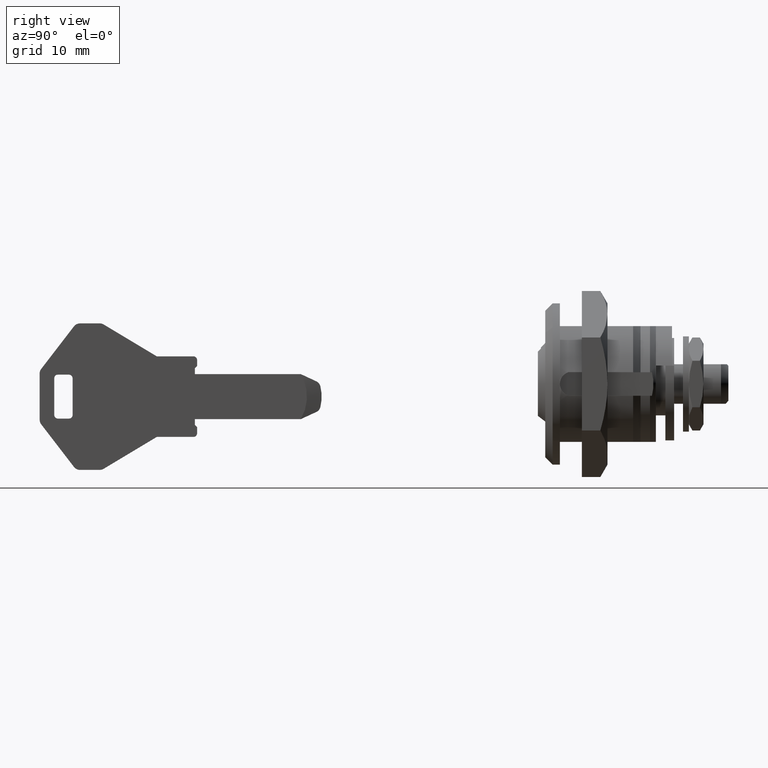
[diagram: clean part render]
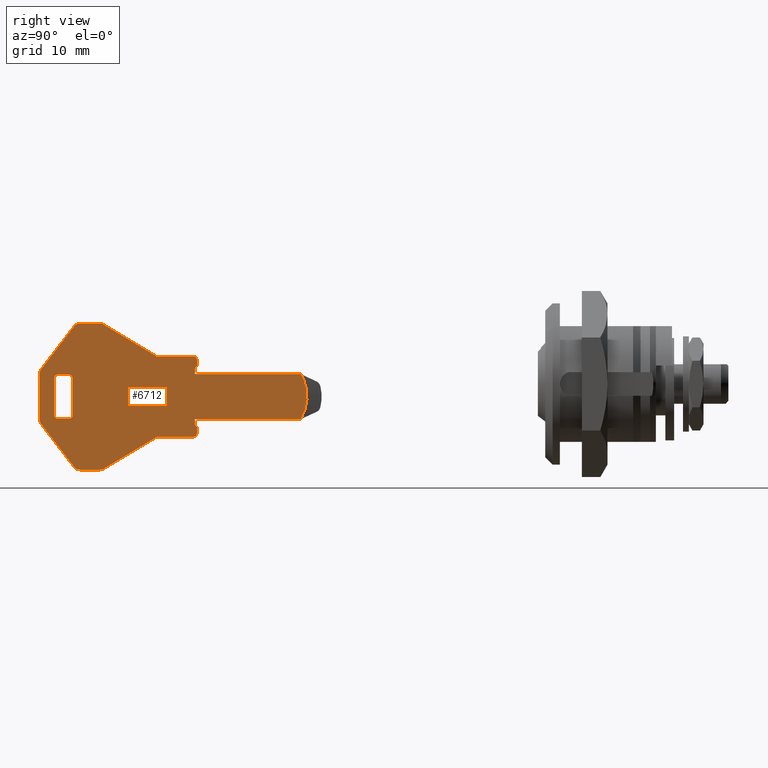
[diagram: same view with one face highlighted and labeled with its STEP entity id]
A machine part, right view. The second image highlights one B-rep face of the part: STEP entity #6712.
In plain terms, the highlighted face is a freeform B-spline surface patch.
Its self-contained STEP definition (entity closure, byte-faithful):
#6002=CARTESIAN_POINT('',(-33.377038543214802,-0.899998415014696,1.350000000000000));
#6003=VERTEX_POINT('',#6002);
#6044=CARTESIAN_POINT('',(-33.377038543215527,-0.899998415014839,-4.800000000000080));
#6045=VERTEX_POINT('',#6044);
#6087=CARTESIAN_POINT('',(-33.377038543215527,-0.899998415014839,-4.800000000000080));
#6088=CARTESIAN_POINT('',(-33.152902377031609,-0.899998415014831,-4.424617320372263));
#6089=CARTESIAN_POINT('',(-32.801364602822687,-0.899998415014812,-3.655329617043881));
#6090=CARTESIAN_POINT('',(-32.544793984903087,-0.899998415014786,-2.500422198590437));
#6091=CARTESIAN_POINT('',(-32.501543349401480,-0.899998415014757,-1.218603962806129));
#6092=CARTESIAN_POINT('',(-32.744979303818013,-0.899998415014724,0.082262318686601));
#6093=CARTESIAN_POINT('',(-33.152930568746307,-0.899998415014707,0.974613814575664));
#6094=CARTESIAN_POINT('',(-33.377038543214802,-0.899998415014696,1.350000000000000));
#6095=B_SPLINE_CURVE_WITH_KNOTS('',3,(#6087,#6088,#6089,#6090,#6091,#6092,#6093,#6094),.UNSPECIFIED.,.F.,.U.,(4,1,1,1,1,4),(0.000000040812957,1.311612534022646,2.522359597749969,3.531255800534495,5.145580465891455,6.457193204075082),.UNSPECIFIED.);
#6096=EDGE_CURVE('',#6045,#6003,#6095,.T.);
#6427=CARTESIAN_POINT('',(-70.852376933787852,-0.900000000000000,9.273999585744747));
#6428=CARTESIAN_POINT('',(-30.705931655007170,-0.900000000000000,9.273999585744747));
#6429=CARTESIAN_POINT('',(-70.852376933787852,-0.900000000000000,-12.724000479814579));
#6430=CARTESIAN_POINT('',(-30.705931655007170,-0.900000000000000,-12.724000479814579));
#6431=B_SPLINE_SURFACE_WITH_KNOTS('',1,1,((#6427,#6429),(#6428,#6430)),.UNSPECIFIED.,.F.,.F.,.U.,(2,2),(2,2),(0.0,40.146445278780682),(0.0,21.998000065559321),.UNSPECIFIED.);
#6432=ORIENTED_EDGE('',*,*,#6096,.T.);
#6433=CARTESIAN_POINT('',(-47.829200000000000,-0.900000000000012,1.350000000000000));
#6434=VERTEX_POINT('',#6433);
#6435=CARTESIAN_POINT('',(-33.377038543214802,-0.899998415014696,1.350000000000000));
#6436=CARTESIAN_POINT('',(-47.829200000000000,-0.900000000000012,1.350000000000000));
#6437=QUASI_UNIFORM_CURVE('',1,(#6435,#6436),.UNSPECIFIED.,.F.,.U.);
#6438=EDGE_CURVE('',#6003,#6434,#6437,.T.);
#6439=ORIENTED_EDGE('',*,*,#6438,.T.);
#6440=CARTESIAN_POINT('',(-47.829200000000000,-0.900000000000012,2.150000000000000));
#6441=VERTEX_POINT('',#6440);
#6442=CARTESIAN_POINT('',(-47.829200000000000,-0.900000000000012,1.350000000000000));
#6443=CARTESIAN_POINT('',(-47.829200000000000,-0.900000000000012,2.150000000000000));
#6444=QUASI_UNIFORM_CURVE('',1,(#6442,#6443),.UNSPECIFIED.,.F.,.U.);
#6445=EDGE_CURVE('',#6434,#6441,#6444,.T.);
#6446=ORIENTED_EDGE('',*,*,#6445,.T.);
#6447=CARTESIAN_POINT('',(-47.529200000000003,-0.900000000000012,2.450000000000000));
#6448=VERTEX_POINT('',#6447);
#6449=CARTESIAN_POINT('',(-47.829200000000000,-0.900000000000012,2.150000000000000));
#6450=CARTESIAN_POINT('',(-47.529200000000003,-0.900000000000012,2.450000000000000));
#6451=QUASI_UNIFORM_CURVE('',1,(#6449,#6450),.UNSPECIFIED.,.F.,.U.);
#6452=EDGE_CURVE('',#6441,#6448,#6451,.T.);
#6453=ORIENTED_EDGE('',*,*,#6452,.T.);
#6454=CARTESIAN_POINT('',(-47.529200000000003,-0.900000000000012,3.275000000000000));
#6455=VERTEX_POINT('',#6454);
#6456=CARTESIAN_POINT('',(-47.529200000000003,-0.900000000000012,2.450000000000000));
#6457=CARTESIAN_POINT('',(-47.529200000000003,-0.900000000000012,3.275000000000000));
#6458=QUASI_UNIFORM_CURVE('',1,(#6456,#6457),.UNSPECIFIED.,.F.,.U.);
#6459=EDGE_CURVE('',#6448,#6455,#6458,.T.);
#6460=ORIENTED_EDGE('',*,*,#6459,.T.);
#6461=CARTESIAN_POINT('',(-48.029200000000003,-0.900000000000012,3.775000000000000));
#6462=VERTEX_POINT('',#6461);
#6463=CARTESIAN_POINT('',(-47.529200000000003,-0.900000000000012,3.275000000000000));
#6464=CARTESIAN_POINT('',(-47.529043584060737,-0.900000000000012,3.356849959860222));
#6465=CARTESIAN_POINT('',(-47.560001471217163,-0.900000000000012,3.479398876038724));
#6466=CARTESIAN_POINT('',(-47.669210471618470,-0.900000000000012,3.634430003952036));
#6467=CARTESIAN_POINT('',(-47.816564684132643,-0.900000000000012,3.743709806676057));
#6468=CARTESIAN_POINT('',(-47.955547327944458,-0.900000000000014,3.775112477421635));
#6469=CARTESIAN_POINT('',(-48.029200000000003,-0.900000000000012,3.775000000000000));
#6470=B_SPLINE_CURVE_WITH_KNOTS('',3,(#6463,#6464,#6465,#6466,#6467,#6468,#6469),.UNSPECIFIED.,.F.,.U.,(4,1,1,1,4),(0.000000378754695,0.245466615866304,0.368210764458864,0.564556063266685,0.785476941727197),.UNSPECIFIED.);
#6471=EDGE_CURVE('',#6455,#6462,#6470,.T.);
#6472=ORIENTED_EDGE('',*,*,#6471,.T.);
#6473=CARTESIAN_POINT('',(-53.029200000000003,-0.900000000000012,3.775000000000000));
#6474=VERTEX_POINT('',#6473);
#6475=CARTESIAN_POINT('',(-48.029200000000003,-0.900000000000012,3.775000000000000));
#6476=CARTESIAN_POINT('',(-53.029200000000003,-0.900000000000012,3.775000000000000));
#6477=QUASI_UNIFORM_CURVE('',1,(#6475,#6476),.UNSPECIFIED.,.F.,.U.);
#6478=EDGE_CURVE('',#6462,#6474,#6477,.T.);
#6479=ORIENTED_EDGE('',*,*,#6478,.T.);
#6480=CARTESIAN_POINT('',(-60.265547876998099,-0.900000000000012,8.116310526689340));
#6481=VERTEX_POINT('',#6480);
#6482=CARTESIAN_POINT('',(-53.029200000000003,-0.900000000000012,3.775000000000000));
#6483=CARTESIAN_POINT('',(-60.265547876998099,-0.900000000000012,8.116310526689340));
#6484=QUASI_UNIFORM_CURVE('',1,(#6482,#6483),.UNSPECIFIED.,.F.,.U.);
#6485=EDGE_CURVE('',#6474,#6481,#6484,.T.);
#6486=ORIENTED_EDGE('',*,*,#6485,.T.);
#6487=CARTESIAN_POINT('',(-60.806100000000001,-0.900000000000012,8.274999999999999));
#6488=VERTEX_POINT('',#6487);
#6489=CARTESIAN_POINT('',(-60.265547876998099,-0.900000000000012,8.116310526689340));
#6490=CARTESIAN_POINT('',(-60.425569254137500,-0.900000000000012,8.219621950942406));
#6491=CARTESIAN_POINT('',(-60.615662822163422,-0.900000000000012,8.275291947905297));
#6492=CARTESIAN_POINT('',(-60.806100000000001,-0.900000000000012,8.274999999999999));
#6493=B_SPLINE_CURVE_WITH_KNOTS('',3,(#6489,#6490,#6491,#6492),.UNSPECIFIED.,.F.,.U.,(4,4),(0.000000034768193,0.571123536007726),.UNSPECIFIED.);
#6494=EDGE_CURVE('',#6481,#6488,#6493,.T.);
#6495=ORIENTED_EDGE('',*,*,#6494,.T.);
#6496=CARTESIAN_POINT('',(-63.536800000000007,-0.900000000000012,8.274999999999999));
#6497=VERTEX_POINT('',#6496);
#6498=CARTESIAN_POINT('',(-60.806100000000001,-0.900000000000012,8.274999999999999));
#6499=CARTESIAN_POINT('',(-63.536800000000007,-0.900000000000012,8.274999999999999));
#6500=QUASI_UNIFORM_CURVE('',1,(#6498,#6499),.UNSPECIFIED.,.F.,.U.);
#6501=EDGE_CURVE('',#6488,#6497,#6500,.T.);
#6502=ORIENTED_EDGE('',*,*,#6501,.T.);
#6503=CARTESIAN_POINT('',(-64.329400047204601,-0.900000000000012,7.884999938624711));
#6504=VERTEX_POINT('',#6503);
#6505=CARTESIAN_POINT('',(-63.536800000000007,-0.900000000000012,8.274999999999999));
#6506=CARTESIAN_POINT('',(-63.670252051023077,-0.900000000000012,8.275218665045104));
#6507=CARTESIAN_POINT('',(-63.975206675919772,-0.900000000000012,8.213265140419839));
#6508=CARTESIAN_POINT('',(-64.225077251292134,-0.900000000000013,8.021310965326384));
#6509=CARTESIAN_POINT('',(-64.329400047204601,-0.900000000000012,7.884999938624711));
#6510=B_SPLINE_CURVE_WITH_KNOTS('',3,(#6505,#6506,#6507,#6508,#6509),.UNSPECIFIED.,.F.,.U.,(4,1,4),(0.000000120151753,0.400341080771767,0.915027601937548),.UNSPECIFIED.);
#6511=EDGE_CURVE('',#6497,#6504,#6510,.T.);
#6512=ORIENTED_EDGE('',*,*,#6511,.T.);
#6513=CARTESIAN_POINT('',(-68.839844749133903,-0.900000000000012,2.020538291405075));
#6514=VERTEX_POINT('',#6513);
#6515=CARTESIAN_POINT('',(-64.329400047204601,-0.900000000000012,7.884999938624711));
#6516=CARTESIAN_POINT('',(-68.839844749133903,-0.900000000000012,2.020538291405075));
#6517=QUASI_UNIFORM_CURVE('',1,(#6515,#6516),.UNSPECIFIED.,.F.,.U.);
#6518=EDGE_CURVE('',#6504,#6514,#6517,.T.);
#6519=ORIENTED_EDGE('',*,*,#6518,.T.);
#6520=CARTESIAN_POINT('',(-69.029200000000003,-0.900000000000012,1.435000000000016));
#6521=VERTEX_POINT('',#6520);
#6522=CARTESIAN_POINT('',(-68.839844749133903,-0.900000000000012,2.020538291405075));
#6523=CARTESIAN_POINT('',(-68.908603222968637,-0.900000000000013,1.925505307822197));
#6524=CARTESIAN_POINT('',(-69.000470886050209,-0.900000000000010,1.734727633931907));
#6525=CARTESIAN_POINT('',(-69.029227402619497,-0.900000000000013,1.526229735561985));
#6526=CARTESIAN_POINT('',(-69.029200000000003,-0.900000000000012,1.435000000000016));
#6527=B_SPLINE_CURVE_WITH_KNOTS('',3,(#6522,#6523,#6524,#6525,#6526),.UNSPECIFIED.,.F.,.U.,(4,1,4),(0.000000054737451,0.351883973345525,0.625583741767919),.UNSPECIFIED.);
#6528=EDGE_CURVE('',#6514,#6521,#6527,.T.);
#6529=ORIENTED_EDGE('',*,*,#6528,.T.);
#6530=CARTESIAN_POINT('',(-69.029200000000003,-0.900000000000012,-4.885000000000090));
#6531=VERTEX_POINT('',#6530);
#6532=CARTESIAN_POINT('',(-69.029200000000003,-0.900000000000012,1.435000000000016));
#6533=CARTESIAN_POINT('',(-69.029200000000003,-0.900000000000012,-4.885000000000090));
#6534=QUASI_UNIFORM_CURVE('',1,(#6532,#6533),.UNSPECIFIED.,.F.,.U.);
#6535=EDGE_CURVE('',#6521,#6531,#6534,.T.);
#6536=ORIENTED_EDGE('',*,*,#6535,.T.);
#6537=CARTESIAN_POINT('',(-68.821799999999996,-0.900000000000012,-5.495000000000080));
#6538=VERTEX_POINT('',#6537);
#6539=CARTESIAN_POINT('',(-69.029200000000003,-0.900000000000012,-4.885000000000090));
#6540=CARTESIAN_POINT('',(-69.029344328384838,-0.900000000000013,-5.008017425576838));
#6541=CARTESIAN_POINT('',(-68.988376903731421,-0.900000000000010,-5.226591401505659));
#6542=CARTESIAN_POINT('',(-68.880162636342604,-0.900000000000014,-5.419192868605842));
#6543=CARTESIAN_POINT('',(-68.821799999999996,-0.900000000000012,-5.495000000000080));
#6544=B_SPLINE_CURVE_WITH_KNOTS('',3,(#6539,#6540,#6541,#6542,#6543),.UNSPECIFIED.,.F.,.U.,(4,1,4),(0.000000034420036,0.369020570195113,0.656036812134061),.UNSPECIFIED.);
#6545=EDGE_CURVE('',#6531,#6538,#6544,.T.);
#6546=ORIENTED_EDGE('',*,*,#6545,.T.);
#6547=CARTESIAN_POINT('',(-64.329400009085390,-0.900000000000012,-11.334999988189161));
#6548=VERTEX_POINT('',#6547);
#6549=CARTESIAN_POINT('',(-68.821799999999996,-0.900000000000012,-5.495000000000080));
#6550=CARTESIAN_POINT('',(-64.329400009085390,-0.900000000000012,-11.334999988189161));
#6551=QUASI_UNIFORM_CURVE('',1,(#6549,#6550),.UNSPECIFIED.,.F.,.U.);
#6552=EDGE_CURVE('',#6538,#6548,#6551,.T.);
#6553=ORIENTED_EDGE('',*,*,#6552,.T.);
#6554=CARTESIAN_POINT('',(-63.536800000000007,-0.900000000000012,-11.725000000000160));
#6555=VERTEX_POINT('',#6554);
#6556=CARTESIAN_POINT('',(-64.329400009085390,-0.900000000000012,-11.334999988189161));
#6557=CARTESIAN_POINT('',(-64.230817014421135,-0.900000000000013,-11.463644188985180));
#6558=CARTESIAN_POINT('',(-63.984670356665767,-0.900000000000011,-11.658652239598030));
#6559=CARTESIAN_POINT('',(-63.679800325578121,-0.900000000000012,-11.725266643935900));
#6560=CARTESIAN_POINT('',(-63.536800000000007,-0.900000000000012,-11.725000000000160));
#6561=B_SPLINE_CURVE_WITH_KNOTS('',3,(#6556,#6557,#6558,#6559,#6560),.UNSPECIFIED.,.F.,.U.,(4,1,4),(0.000000120061901,0.486077434635108,0.915015808070729),.UNSPECIFIED.);
#6562=EDGE_CURVE('',#6548,#6555,#6561,.T.);
#6563=ORIENTED_EDGE('',*,*,#6562,.T.);
#6564=CARTESIAN_POINT('',(-60.806100000000001,-0.900000000000012,-11.725000000000000));
#6565=VERTEX_POINT('',#6564);
#6566=CARTESIAN_POINT('',(-63.536800000000007,-0.900000000000012,-11.725000000000160));
#6567=CARTESIAN_POINT('',(-60.806100000000001,-0.900000000000012,-11.725000000000000));
#6568=QUASI_UNIFORM_CURVE('',1,(#6566,#6567),.UNSPECIFIED.,.F.,.U.);
#6569=EDGE_CURVE('',#6555,#6565,#6568,.T.);
#6570=ORIENTED_EDGE('',*,*,#6569,.T.);
#6571=CARTESIAN_POINT('',(-60.291699955738203,-0.900000000000012,-11.582999973439920));
#6572=VERTEX_POINT('',#6571);
#6573=CARTESIAN_POINT('',(-60.806100000000001,-0.900000000000012,-11.725000000000000));
#6574=CARTESIAN_POINT('',(-60.625941345514960,-0.900000000000013,-11.725661369077320));
#6575=CARTESIAN_POINT('',(-60.446036689451340,-0.900000000000012,-11.675887335064850));
#6576=CARTESIAN_POINT('',(-60.291699955738203,-0.900000000000012,-11.582999973439920));
#6577=B_SPLINE_CURVE_WITH_KNOTS('',3,(#6573,#6574,#6575,#6576),.UNSPECIFIED.,.F.,.U.,(4,4),(0.000000044724348,0.540260153120440),.UNSPECIFIED.);
#6578=EDGE_CURVE('',#6565,#6572,#6577,.T.);
#6579=ORIENTED_EDGE('',*,*,#6578,.T.);
#6580=CARTESIAN_POINT('',(-53.029200000000003,-0.900000000000012,-7.225000000000000));
#6581=VERTEX_POINT('',#6580);
#6582=CARTESIAN_POINT('',(-60.291699955738203,-0.900000000000012,-11.582999973439920));
#6583=CARTESIAN_POINT('',(-53.029200000000003,-0.900000000000012,-7.225000000000000));
#6584=QUASI_UNIFORM_CURVE('',1,(#6582,#6583),.UNSPECIFIED.,.F.,.U.);
#6585=EDGE_CURVE('',#6572,#6581,#6584,.T.);
#6586=ORIENTED_EDGE('',*,*,#6585,.T.);
#6587=CARTESIAN_POINT('',(-48.029200000000003,-0.900000000000012,-7.225000000000000));
#6588=VERTEX_POINT('',#6587);
#6589=CARTESIAN_POINT('',(-53.029200000000003,-0.900000000000012,-7.225000000000000));
#6590=CARTESIAN_POINT('',(-48.029200000000003,-0.900000000000012,-7.225000000000000));
#6591=QUASI_UNIFORM_CURVE('',1,(#6589,#6590),.UNSPECIFIED.,.F.,.U.);
#6592=EDGE_CURVE('',#6581,#6588,#6591,.T.);
#6593=ORIENTED_EDGE('',*,*,#6592,.T.);
#6594=CARTESIAN_POINT('',(-47.529200000000003,-0.900000000000012,-6.725000000000000));
#6595=VERTEX_POINT('',#6594);
#6596=CARTESIAN_POINT('',(-48.029200000000003,-0.900000000000012,-7.225000000000000));
#6597=CARTESIAN_POINT('',(-47.947348378245202,-0.900000000000013,-7.225159022870324));
#6598=CARTESIAN_POINT('',(-47.824802085753468,-0.900000000000011,-7.194195560144747));
#6599=CARTESIAN_POINT('',(-47.669769607722429,-0.900000000000013,-7.084990774377641));
#6600=CARTESIAN_POINT('',(-47.560490324399822,-0.900000000000011,-6.937634895600256));
#6601=CARTESIAN_POINT('',(-47.529087500856960,-0.900000000000014,-6.798652743611017));
#6602=CARTESIAN_POINT('',(-47.529200000000003,-0.900000000000012,-6.725000000000000));
#6603=B_SPLINE_CURVE_WITH_KNOTS('',3,(#6596,#6597,#6598,#6599,#6600,#6601,#6602),.UNSPECIFIED.,.F.,.U.,(4,1,1,1,4),(0.000000378756345,0.245466615867873,0.368210764460239,0.564556063267420,0.785476941727156),.UNSPECIFIED.);
#6604=EDGE_CURVE('',#6588,#6595,#6603,.T.);
#6605=ORIENTED_EDGE('',*,*,#6604,.T.);
#6606=CARTESIAN_POINT('',(-47.529200000000003,-0.900000000000012,-5.900000000000000));
#6607=VERTEX_POINT('',#6606);
#6608=CARTESIAN_POINT('',(-47.529200000000003,-0.900000000000012,-6.725000000000000));
#6609=CARTESIAN_POINT('',(-47.529200000000003,-0.900000000000012,-5.900000000000000));
#6610=QUASI_UNIFORM_CURVE('',1,(#6608,#6609),.UNSPECIFIED.,.F.,.U.);
#6611=EDGE_CURVE('',#6595,#6607,#6610,.T.);
#6612=ORIENTED_EDGE('',*,*,#6611,.T.);
#6613=CARTESIAN_POINT('',(-47.829200000000000,-0.900000000000012,-5.600000000000000));
#6614=VERTEX_POINT('',#6613);
#6615=CARTESIAN_POINT('',(-47.529200000000003,-0.900000000000012,-5.900000000000000));
#6616=CARTESIAN_POINT('',(-47.829200000000000,-0.900000000000012,-5.600000000000000));
#6617=QUASI_UNIFORM_CURVE('',1,(#6615,#6616),.UNSPECIFIED.,.F.,.U.);
#6618=EDGE_CURVE('',#6607,#6614,#6617,.T.);
#6619=ORIENTED_EDGE('',*,*,#6618,.T.);
#6620=CARTESIAN_POINT('',(-47.829200000000000,-0.900000000000012,-4.800000000000080));
#6621=VERTEX_POINT('',#6620);
#6622=CARTESIAN_POINT('',(-47.829200000000000,-0.900000000000012,-5.600000000000000));
#6623=CARTESIAN_POINT('',(-47.829200000000000,-0.900000000000012,-4.800000000000080));
#6624=QUASI_UNIFORM_CURVE('',1,(#6622,#6623),.UNSPECIFIED.,.F.,.U.);
#6625=EDGE_CURVE('',#6614,#6621,#6624,.T.);
#6626=ORIENTED_EDGE('',*,*,#6625,.T.);
#6627=CARTESIAN_POINT('',(-47.829200000000000,-0.900000000000012,-4.800000000000080));
#6628=CARTESIAN_POINT('',(-33.377038543215527,-0.899998415014839,-4.800000000000080));
#6629=QUASI_UNIFORM_CURVE('',1,(#6627,#6628),.UNSPECIFIED.,.F.,.U.);
#6630=EDGE_CURVE('',#6621,#6045,#6629,.T.);
#6631=ORIENTED_EDGE('',*,*,#6630,.T.);
#6632=EDGE_LOOP('',(#6432,#6439,#6446,#6453,#6460,#6472,#6479,#6486,#6495,#6502,#6512,#6519,#6529,#6536,#6546,#6553,#6563,#6570,#6579,#6586,#6593,#6605,#6612,#6619,#6626,#6631));
#6633=FACE_OUTER_BOUND('',#6632,.T.);
#6634=CARTESIAN_POINT('',(-64.529199999999989,-0.900000000000012,0.775000000000020));
#6635=VERTEX_POINT('',#6634);
#6636=CARTESIAN_POINT('',(-65.029199999999989,-0.900000000000012,1.275000000000020));
#6637=VERTEX_POINT('',#6636);
#6638=CARTESIAN_POINT('',(-64.529199999999989,-0.900000000000012,0.775000000000020));
#6639=CARTESIAN_POINT('',(-64.529040551449384,-0.900000000000012,0.856851753201348));
#6640=CARTESIAN_POINT('',(-64.560004130086526,-0.900000000000012,0.979400240704490));
#6641=CARTESIAN_POINT('',(-64.659743615419856,-0.900000000000012,1.120908488291919));
#6642=CARTESIAN_POINT('',(-64.800354062808211,-0.900000000000013,1.236395001889831));
#6643=CARTESIAN_POINT('',(-64.939136865681647,-0.900000000000012,1.275266826704393));
#6644=CARTESIAN_POINT('',(-65.029199999999989,-0.900000000000012,1.275000000000020));
#6645=B_SPLINE_CURVE_WITH_KNOTS('',3,(#6638,#6639,#6640,#6641,#6642,#6643,#6644),.UNSPECIFIED.,.F.,.U.,(4,1,1,1,4),(0.000000378752525,0.245466615865067,0.368210764458137,0.515464349929587,0.785476941727202),.UNSPECIFIED.);
#6646=EDGE_CURVE('',#6635,#6637,#6645,.T.);
#6647=ORIENTED_EDGE('',*,*,#6646,.F.);
#6648=CARTESIAN_POINT('',(-64.529199999999989,-0.900000000000012,-4.225000000000000));
#6649=VERTEX_POINT('',#6648);
#6650=CARTESIAN_POINT('',(-64.529199999999989,-0.900000000000012,-4.225000000000000));
#6651=CARTESIAN_POINT('',(-64.529199999999989,-0.900000000000012,0.775000000000020));
#6652=QUASI_UNIFORM_CURVE('',1,(#6650,#6651),.UNSPECIFIED.,.F.,.U.);
#6653=EDGE_CURVE('',#6649,#6635,#6652,.T.);
#6654=ORIENTED_EDGE('',*,*,#6653,.F.);
#6655=CARTESIAN_POINT('',(-65.029199999999989,-0.900000000000012,-4.725000000000000));
#6656=VERTEX_POINT('',#6655);
#6657=CARTESIAN_POINT('',(-65.029199999999989,-0.900000000000012,-4.725000000000000));
#6658=CARTESIAN_POINT('',(-64.947352377279316,-0.900000000000012,-4.725162298127462));
#6659=CARTESIAN_POINT('',(-64.808462136726348,-0.900000000000012,-4.690071126310268));
#6660=CARTESIAN_POINT('',(-64.644788787122579,-0.900000000000012,-4.562366729861340));
#6661=CARTESIAN_POINT('',(-64.550476858303952,-0.900000000000012,-4.404990627716376));
#6662=CARTESIAN_POINT('',(-64.529174830659358,-0.900000000000012,-4.282263384184427));
#6663=CARTESIAN_POINT('',(-64.529199999999989,-0.900000000000012,-4.225000000000000));
#6664=B_SPLINE_CURVE_WITH_KNOTS('',3,(#6657,#6658,#6659,#6660,#6661,#6662,#6663),.UNSPECIFIED.,.F.,.U.,(4,1,1,1,4),(0.000000378754297,0.245466615866465,0.417262450505471,0.613659777040022,0.785476941727196),.UNSPECIFIED.);
#6665=EDGE_CURVE('',#6656,#6649,#6664,.T.);
#6666=ORIENTED_EDGE('',*,*,#6665,.F.);
#6667=CARTESIAN_POINT('',(-66.529200000000003,-0.900000000000012,-4.725000000000000));
#6668=VERTEX_POINT('',#6667);
#6669=CARTESIAN_POINT('',(-66.529200000000003,-0.900000000000012,-4.725000000000000));
#6670=CARTESIAN_POINT('',(-65.029199999999989,-0.900000000000012,-4.725000000000000));
#6671=QUASI_UNIFORM_CURVE('',1,(#6669,#6670),.UNSPECIFIED.,.F.,.U.);
#6672=EDGE_CURVE('',#6668,#6656,#6671,.T.);
#6673=ORIENTED_EDGE('',*,*,#6672,.F.);
#6674=CARTESIAN_POINT('',(-67.029200000000003,-0.900000000000012,-4.225000000000000));
#6675=VERTEX_POINT('',#6674);
#6676=CARTESIAN_POINT('',(-67.029200000000003,-0.900000000000012,-4.225000000000000));
#6677=CARTESIAN_POINT('',(-67.029358656274624,-0.900000000000013,-4.306844794486773));
#6678=CARTESIAN_POINT('',(-66.994284299022851,-0.900000000000012,-4.445752058656367));
#6679=CARTESIAN_POINT('',(-66.876760692660994,-0.900000000000012,-4.596281834769509));
#6680=CARTESIAN_POINT('',(-66.725465818627910,-0.900000000000012,-4.697368691854591));
#6681=CARTESIAN_POINT('',(-66.602858023706972,-0.900000000000012,-4.725113948765412));
#6682=CARTESIAN_POINT('',(-66.529200000000003,-0.900000000000012,-4.725000000000000));
#6683=B_SPLINE_CURVE_WITH_KNOTS('',3,(#6676,#6677,#6678,#6679,#6680,#6681,#6682),.UNSPECIFIED.,.F.,.U.,(4,1,1,1,4),(0.000000378758152,0.245466615868381,0.417262450506461,0.564556063267235,0.785476941727190),.UNSPECIFIED.);
#6684=EDGE_CURVE('',#6675,#6668,#6683,.T.);
#6685=ORIENTED_EDGE('',*,*,#6684,.F.);
#6686=CARTESIAN_POINT('',(-67.029200000000003,-0.900000000000012,0.775000000000020));
#6687=VERTEX_POINT('',#6686);
#6688=CARTESIAN_POINT('',(-67.029200000000003,-0.900000000000012,0.775000000000020));
#6689=CARTESIAN_POINT('',(-67.029200000000003,-0.900000000000012,-4.225000000000000));
#6690=QUASI_UNIFORM_CURVE('',1,(#6688,#6689),.UNSPECIFIED.,.F.,.U.);
#6691=EDGE_CURVE('',#6687,#6675,#6690,.T.);
#6692=ORIENTED_EDGE('',*,*,#6691,.F.);
#6693=CARTESIAN_POINT('',(-66.529200000000003,-0.900000000000012,1.275000000000020));
#6694=VERTEX_POINT('',#6693);
#6695=CARTESIAN_POINT('',(-66.529200000000003,-0.900000000000012,1.275000000000020));
#6696=CARTESIAN_POINT('',(-66.611049113764082,-0.900000000000013,1.275162732288272));
#6697=CARTESIAN_POINT('',(-66.749936611399406,-0.900000000000011,1.240070402749249));
#6698=CARTESIAN_POINT('',(-66.913613033931696,-0.900000000000013,1.112367871034588));
#6699=CARTESIAN_POINT('',(-67.007918550687180,-0.900000000000008,0.954985581901014));
#6700=CARTESIAN_POINT('',(-67.029229596404534,-0.900000000000015,0.832268673270701));
#6701=CARTESIAN_POINT('',(-67.029200000000003,-0.900000000000012,0.775000000000020));
#6702=B_SPLINE_CURVE_WITH_KNOTS('',3,(#6695,#6696,#6697,#6698,#6699,#6700,#6701),.UNSPECIFIED.,.F.,.U.,(4,1,1,1,4),(0.000000378751354,0.245466615864317,0.417262450504193,0.613659777039460,0.785476941727251),.UNSPECIFIED.);
#6703=EDGE_CURVE('',#6694,#6687,#6702,.T.);
#6704=ORIENTED_EDGE('',*,*,#6703,.F.);
#6705=CARTESIAN_POINT('',(-65.029199999999989,-0.900000000000012,1.275000000000020));
#6706=CARTESIAN_POINT('',(-66.529200000000003,-0.900000000000012,1.275000000000020));
#6707=QUASI_UNIFORM_CURVE('',1,(#6705,#6706),.UNSPECIFIED.,.F.,.U.);
#6708=EDGE_CURVE('',#6637,#6694,#6707,.T.);
#6709=ORIENTED_EDGE('',*,*,#6708,.F.);
#6710=EDGE_LOOP('',(#6647,#6654,#6666,#6673,#6685,#6692,#6704,#6709));
#6711=FACE_BOUND('',#6710,.T.);
#6712=ADVANCED_FACE('',(#6633,#6711),#6431,.F.);